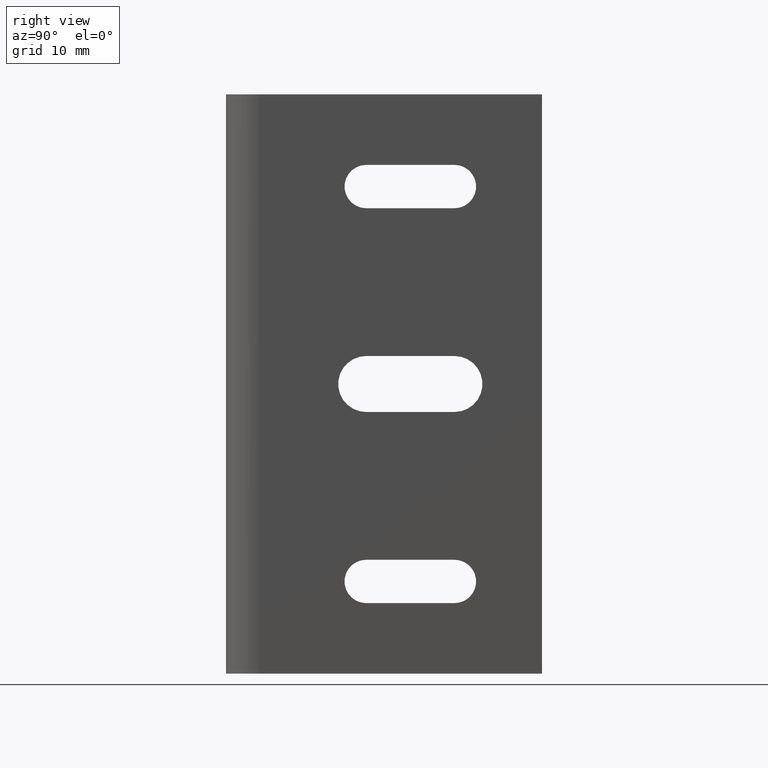
[diagram: clean part render]
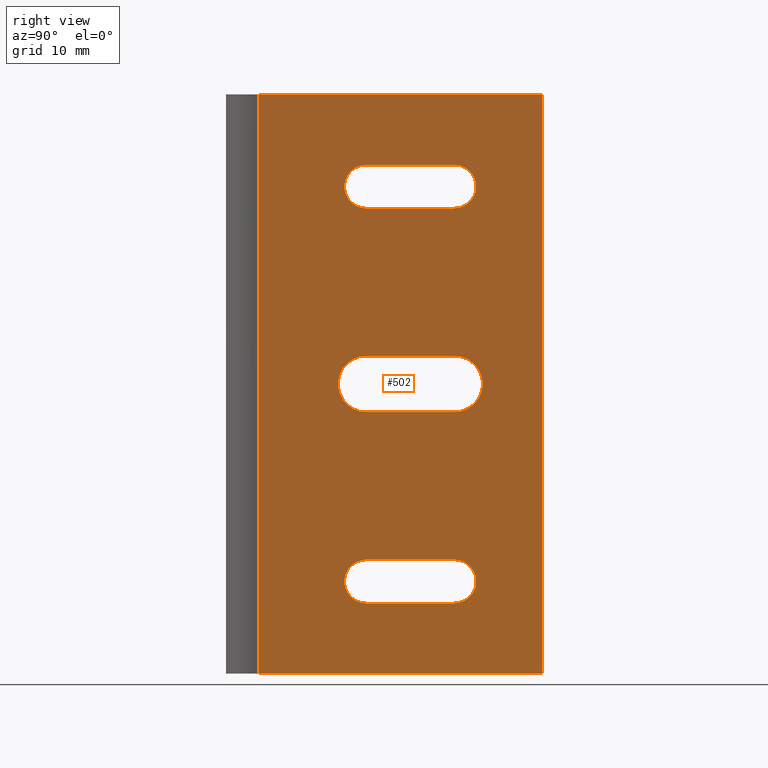
[diagram: same view with one face highlighted and labeled with its STEP entity id]
A machine part, right view. The second image highlights one B-rep face of the part: STEP entity #502.
In plain terms, the highlighted planar face has unit normal (-1, 0, 0).
Its self-contained STEP definition (entity closure, byte-faithful):
#67 = ORIENTED_EDGE ( 'NONE', *, *, #523, .T. ) ;
#69 = ORIENTED_EDGE ( 'NONE', *, *, #581, .T. ) ;
#70 = ORIENTED_EDGE ( 'NONE', *, *, #522, .T. ) ;
#79 = ORIENTED_EDGE ( 'NONE', *, *, #524, .T. ) ;
#85 = VERTEX_POINT ( 'NONE', #1056 ) ;
#102 = VERTEX_POINT ( 'NONE', #1018 ) ;
#103 = VERTEX_POINT ( 'NONE', #1013 ) ;
#104 = VERTEX_POINT ( 'NONE', #1010 ) ;
#107 = VERTEX_POINT ( 'NONE', #1003 ) ;
#113 = VERTEX_POINT ( 'NONE', #996 ) ;
#126 = VERTEX_POINT ( 'NONE', #955 ) ;
#129 = ORIENTED_EDGE ( 'NONE', *, *, #580, .F. ) ;
#137 = ORIENTED_EDGE ( 'NONE', *, *, #521, .T. ) ;
#150 = ORIENTED_EDGE ( 'NONE', *, *, #579, .T. ) ;
#151 = ORIENTED_EDGE ( 'NONE', *, *, #583, .T. ) ;
#152 = ORIENTED_EDGE ( 'NONE', *, *, #818, .T. ) ;
#153 = ORIENTED_EDGE ( 'NONE', *, *, #578, .T. ) ;
#154 = ORIENTED_EDGE ( 'NONE', *, *, #520, .T. ) ;
#174 = ORIENTED_EDGE ( 'NONE', *, *, #822, .T. ) ;
#176 = ORIENTED_EDGE ( 'NONE', *, *, #576, .F. ) ;
#177 = ORIENTED_EDGE ( 'NONE', *, *, #525, .T. ) ;
#190 = ORIENTED_EDGE ( 'NONE', *, *, #582, .T. ) ;
#199 = ORIENTED_EDGE ( 'NONE', *, *, #577, .T. ) ;
#302 = LINE ( 'NONE', #912, #309 ) ;
#303 = VECTOR ( 'NONE', #796, 39.37007874015748100 ) ;
#307 = LINE ( 'NONE', #946, #308 ) ;
#308 = VECTOR ( 'NONE', #935, 39.37007874015748100 ) ;
#309 = VECTOR ( 'NONE', #969, 39.37007874015748100 ) ;
#310 = LINE ( 'NONE', #798, #303 ) ;
#312 = LINE ( 'NONE', #772, #313 ) ;
#313 = VECTOR ( 'NONE', #771, 39.37007874015748100 ) ;
#314 = CIRCLE ( 'NONE', #1287, 0.1029999999999998300 ) ;
#315 = LINE ( 'NONE', #788, #316 ) ;
#316 = VECTOR ( 'NONE', #787, 39.37007874015748100 ) ;
#318 = LINE ( 'NONE', #807, #320 ) ;
#319 = CIRCLE ( 'NONE', #1286, 0.1330000000000000100 ) ;
#320 = VECTOR ( 'NONE', #763, 39.37007874015748100 ) ;
#348 = LINE ( 'NONE', #793, #352 ) ;
#352 = VECTOR ( 'NONE', #792, 39.37007874015748100 ) ;
#354 = CIRCLE ( 'NONE', #443, 0.1329999999999999800 ) ;
#443 = AXIS2_PLACEMENT_3D ( 'NONE', #609, #808, #806 ) ;
#502 = ADVANCED_FACE ( 'NONE', ( #882, #887, #889, #891 ), #1128, .F. ) ;
#510 = EDGE_LOOP ( 'NONE', ( #150, #152, #199, #69 ) ) ;
#512 = EDGE_LOOP ( 'NONE', ( #129, #174, #190, #176 ) ) ;
#513 = EDGE_LOOP ( 'NONE', ( #70, #153, #67, #137 ) ) ;
#516 = EDGE_LOOP ( 'NONE', ( #177, #79, #151, #154 ) ) ;
#520 = EDGE_CURVE ( 'NONE', #1096, #1194, #905, .T. ) ;
#521 = EDGE_CURVE ( 'NONE', #103, #1160, #907, .T. ) ;
#522 = EDGE_CURVE ( 'NONE', #1160, #1103, #906, .T. ) ;
#523 = EDGE_CURVE ( 'NONE', #113, #103, #908, .T. ) ;
#524 = EDGE_CURVE ( 'NONE', #1092, #1081, #1296, .T. ) ;
#525 = EDGE_CURVE ( 'NONE', #1194, #1092, #900, .T. ) ;
#576 = EDGE_CURVE ( 'NONE', #126, #1219, #307, .T. ) ;
#577 = EDGE_CURVE ( 'NONE', #107, #102, #302, .T. ) ;
#578 = EDGE_CURVE ( 'NONE', #1103, #113, #314, .T. ) ;
#579 = EDGE_CURVE ( 'NONE', #1084, #85, #310, .T. ) ;
#580 = EDGE_CURVE ( 'NONE', #104, #126, #315, .T. ) ;
#581 = EDGE_CURVE ( 'NONE', #102, #1084, #319, .T. ) ;
#582 = EDGE_CURVE ( 'NONE', #1203, #1219, #312, .T. ) ;
#583 = EDGE_CURVE ( 'NONE', #1081, #1096, #318, .T. ) ;
#609 = CARTESIAN_POINT ( 'NONE',  ( 1.707404996040164500E-017, 0.6655000000000000900, 0.0000000000000000000 ) ) ;
#723 = CARTESIAN_POINT ( 'NONE',  ( 2.408933263771123000E-017, 1.500000000000000200, -1.375000000000000000 ) ) ;
#730 = CARTESIAN_POINT ( 'NONE',  ( 1.644506303074421400E-017, 0.1539999999999999700, -1.375000000000000000 ) ) ;
#735 = CARTESIAN_POINT ( 'NONE',  ( 1.707404996040164500E-017, 1.084500000000000200, 0.8344999999999999100 ) ) ;
#736 = CARTESIAN_POINT ( 'NONE',  ( 1.707404996040164500E-017, 1.084500000000000500, -1.040500000000000000 ) ) ;
#743 = CARTESIAN_POINT ( 'NONE',  ( 1.707404996040164500E-017, 0.6655000000000000900, -1.040500000000000000 ) ) ;
#749 = CARTESIAN_POINT ( 'NONE',  ( 1.707404996040164500E-017, 1.084500000000000200, 1.040500000000000000 ) ) ;
#750 = CARTESIAN_POINT ( 'NONE',  ( 1.707404996040164500E-017, 0.6655000000000000900, 0.8345000000000000200 ) ) ;
#762 = CARTESIAN_POINT ( 'NONE',  ( 1.707404996040164500E-017, 0.6655000000000000900, 1.040500000000000000 ) ) ;
#763 = DIRECTION ( 'NONE',  ( 0.0000000000000000000, 1.000000000000000000, -0.0000000000000000000 ) ) ;
#771 = DIRECTION ( 'NONE',  ( 0.0000000000000000000, 1.000000000000000000, 0.0000000000000000000 ) ) ;
#772 = CARTESIAN_POINT ( 'NONE',  ( 2.408933263771124500E-017, 0.0000000000000000000, -1.375000000000000000 ) ) ;
#776 = DIRECTION ( 'NONE',  ( 0.0000000000000000000, 0.0000000000000000000, 1.000000000000000000 ) ) ;
#777 = CARTESIAN_POINT ( 'NONE',  ( 1.707404996040164500E-017, 1.084500000000000200, -0.1330000000000000100 ) ) ;
#778 = DIRECTION ( 'NONE',  ( -1.000000000000000000, 0.0000000000000000000, 0.0000000000000000000 ) ) ;
#787 = DIRECTION ( 'NONE',  ( 0.0000000000000000000, 1.000000000000000000, 0.0000000000000000000 ) ) ;
#788 = CARTESIAN_POINT ( 'NONE',  ( 2.408933263771124500E-017, 0.0000000000000000000, 1.375000000000000000 ) ) ;
#792 = DIRECTION ( 'NONE',  ( 0.0000000000000000000, 0.0000000000000000000, -1.000000000000000000 ) ) ;
#793 = CARTESIAN_POINT ( 'NONE',  ( 3.351911299114586000E-017, 0.1539999999999999700, 1.375000000000000000 ) ) ;
#796 = DIRECTION ( 'NONE',  ( -0.0000000000000000000, -1.000000000000000000, 0.0000000000000000000 ) ) ;
#798 = CARTESIAN_POINT ( 'NONE',  ( 1.707404996040164500E-017, 0.0000000000000000000, -0.1329999999999999200 ) ) ;
#800 = DIRECTION ( 'NONE',  ( 0.0000000000000000000, 0.0000000000000000000, 1.000000000000000000 ) ) ;
#803 = DIRECTION ( 'NONE',  ( -1.000000000000000000, 0.0000000000000000000, 0.0000000000000000000 ) ) ;
#806 = DIRECTION ( 'NONE',  ( 0.0000000000000000000, 0.0000000000000000000, 1.000000000000000000 ) ) ;
#807 = CARTESIAN_POINT ( 'NONE',  ( 1.707404996040164500E-017, 0.0000000000000000000, 1.040500000000000000 ) ) ;
#808 = DIRECTION ( 'NONE',  ( -1.000000000000000000, 0.0000000000000000000, 0.0000000000000000000 ) ) ;
#818 = EDGE_CURVE ( 'NONE', #85, #107, #354, .T. ) ;
#822 = EDGE_CURVE ( 'NONE', #104, #1203, #348, .T. ) ;
#882 = FACE_BOUND ( 'NONE', #510, .T. ) ;
#887 = FACE_OUTER_BOUND ( 'NONE', #512, .T. ) ;
#888 = VECTOR ( 'NONE', #1083, 39.37007874015748100 ) ;
#889 = FACE_BOUND ( 'NONE', #513, .T. ) ;
#891 = FACE_BOUND ( 'NONE', #516, .T. ) ;
#900 = LINE ( 'NONE', #1073, #902 ) ;
#902 = VECTOR ( 'NONE', #1072, 39.37007874015748100 ) ;
#905 = CIRCLE ( 'NONE', #1246, 0.1029999999999999700 ) ;
#906 = LINE ( 'NONE', #1104, #888 ) ;
#907 = CIRCLE ( 'NONE', #1245, 0.1029999999999998300 ) ;
#908 = LINE ( 'NONE', #1080, #909 ) ;
#909 = VECTOR ( 'NONE', #1079, 39.37007874015748100 ) ;
#912 = CARTESIAN_POINT ( 'NONE',  ( 1.707404996040164500E-017, 0.0000000000000000000, 0.1329999999999999200 ) ) ;
#935 = DIRECTION ( 'NONE',  ( -0.0000000000000000000, 0.0000000000000000000, -1.000000000000000000 ) ) ;
#946 = CARTESIAN_POINT ( 'NONE',  ( 2.408933263771123000E-017, 1.500000000000000200, 1.375000000000000000 ) ) ;
#955 = CARTESIAN_POINT ( 'NONE',  ( -2.069540552357648100E-015, 1.499999999999999800, 1.375000000000000000 ) ) ;
#969 = DIRECTION ( 'NONE',  ( 0.0000000000000000000, 1.000000000000000000, -0.0000000000000000000 ) ) ;
#970 = CARTESIAN_POINT ( 'NONE',  ( 1.707404996040164500E-017, 0.6655000000000000900, -0.9375000000000002200 ) ) ;
#972 = CARTESIAN_POINT ( 'NONE',  ( 1.707404996040164500E-017, 1.084500000000000200, 0.0000000000000000000 ) ) ;
#996 = CARTESIAN_POINT ( 'NONE',  ( 1.707404996040164500E-017, 0.6655000000000000900, -0.8345000000000000200 ) ) ;
#1003 = CARTESIAN_POINT ( 'NONE',  ( 1.707404996040164500E-017, 0.6655000000000000900, 0.1329999999999999200 ) ) ;
#1010 = CARTESIAN_POINT ( 'NONE',  ( 0.0000000000000000000, 0.1539999999999996100, 1.375000000000000000 ) ) ;
#1013 = CARTESIAN_POINT ( 'NONE',  ( 1.707404996040164500E-017, 1.084500000000000500, -0.8345000000000003500 ) ) ;
#1018 = CARTESIAN_POINT ( 'NONE',  ( 1.707404996040164500E-017, 1.084500000000000200, 0.1329999999999999200 ) ) ;
#1056 = CARTESIAN_POINT ( 'NONE',  ( 1.707404996040164500E-017, 0.6655000000000000900, -0.1329999999999996500 ) ) ;
#1072 = DIRECTION ( 'NONE',  ( -0.0000000000000000000, -1.000000000000000000, 0.0000000000000000000 ) ) ;
#1073 = CARTESIAN_POINT ( 'NONE',  ( 1.707404996040164500E-017, 0.0000000000000000000, 0.8344999999999999100 ) ) ;
#1077 = DIRECTION ( 'NONE',  ( 0.0000000000000000000, 0.0000000000000000000, 1.000000000000000000 ) ) ;
#1078 = DIRECTION ( 'NONE',  ( -1.000000000000000000, 0.0000000000000000000, 0.0000000000000000000 ) ) ;
#1079 = DIRECTION ( 'NONE',  ( 0.0000000000000000000, 1.000000000000000000, -0.0000000000000000000 ) ) ;
#1080 = CARTESIAN_POINT ( 'NONE',  ( 1.707404996040164500E-017, 0.0000000000000000000, -0.8345000000000000200 ) ) ;
#1081 = VERTEX_POINT ( 'NONE', #762 ) ;
#1083 = DIRECTION ( 'NONE',  ( -0.0000000000000000000, -1.000000000000000000, 0.0000000000000000000 ) ) ;
#1084 = VERTEX_POINT ( 'NONE', #777 ) ;
#1085 = CARTESIAN_POINT ( 'NONE',  ( 1.707404996040164500E-017, 0.6655000000000000900, 0.9374999999999998900 ) ) ;
#1086 = DIRECTION ( 'NONE',  ( 0.0000000000000000000, 0.0000000000000000000, 1.000000000000000000 ) ) ;
#1088 = DIRECTION ( 'NONE',  ( -1.000000000000000000, 0.0000000000000000000, 0.0000000000000000000 ) ) ;
#1089 = CARTESIAN_POINT ( 'NONE',  ( 1.707404996040164500E-017, 1.084500000000000500, -0.9375000000000002200 ) ) ;
#1090 = DIRECTION ( 'NONE',  ( 0.0000000000000000000, 0.0000000000000000000, 1.000000000000000000 ) ) ;
#1091 = DIRECTION ( 'NONE',  ( -1.000000000000000000, 0.0000000000000000000, 0.0000000000000000000 ) ) ;
#1092 = VERTEX_POINT ( 'NONE', #750 ) ;
#1093 = CARTESIAN_POINT ( 'NONE',  ( 1.707404996040164500E-017, 1.084500000000000200, 0.9374999999999998900 ) ) ;
#1096 = VERTEX_POINT ( 'NONE', #749 ) ;
#1103 = VERTEX_POINT ( 'NONE', #743 ) ;
#1104 = CARTESIAN_POINT ( 'NONE',  ( 1.707404996040164500E-017, 0.0000000000000000000, -1.040500000000000000 ) ) ;
#1123 = DIRECTION ( 'NONE',  ( 0.0000000000000000000, 0.0000000000000000000, 1.000000000000000000 ) ) ;
#1124 = DIRECTION ( 'NONE',  ( -1.000000000000000000, 0.0000000000000000000, 0.0000000000000000000 ) ) ;
#1125 = CARTESIAN_POINT ( 'NONE',  ( 2.408933263771124500E-017, 0.0000000000000000000, 1.375000000000000000 ) ) ;
#1128 = PLANE ( 'NONE',  #1272 ) ;
#1160 = VERTEX_POINT ( 'NONE', #736 ) ;
#1194 = VERTEX_POINT ( 'NONE', #735 ) ;
#1203 = VERTEX_POINT ( 'NONE', #730 ) ;
#1219 = VERTEX_POINT ( 'NONE', #723 ) ;
#1245 = AXIS2_PLACEMENT_3D ( 'NONE', #1089, #1088, #1086 ) ;
#1246 = AXIS2_PLACEMENT_3D ( 'NONE', #1093, #1091, #1090 ) ;
#1272 = AXIS2_PLACEMENT_3D ( 'NONE', #1125, #1124, #1123 ) ;
#1277 = AXIS2_PLACEMENT_3D ( 'NONE', #1085, #1078, #1077 ) ;
#1286 = AXIS2_PLACEMENT_3D ( 'NONE', #972, #778, #776 ) ;
#1287 = AXIS2_PLACEMENT_3D ( 'NONE', #970, #803, #800 ) ;
#1296 = CIRCLE ( 'NONE', #1277, 0.1029999999999998300 ) ;